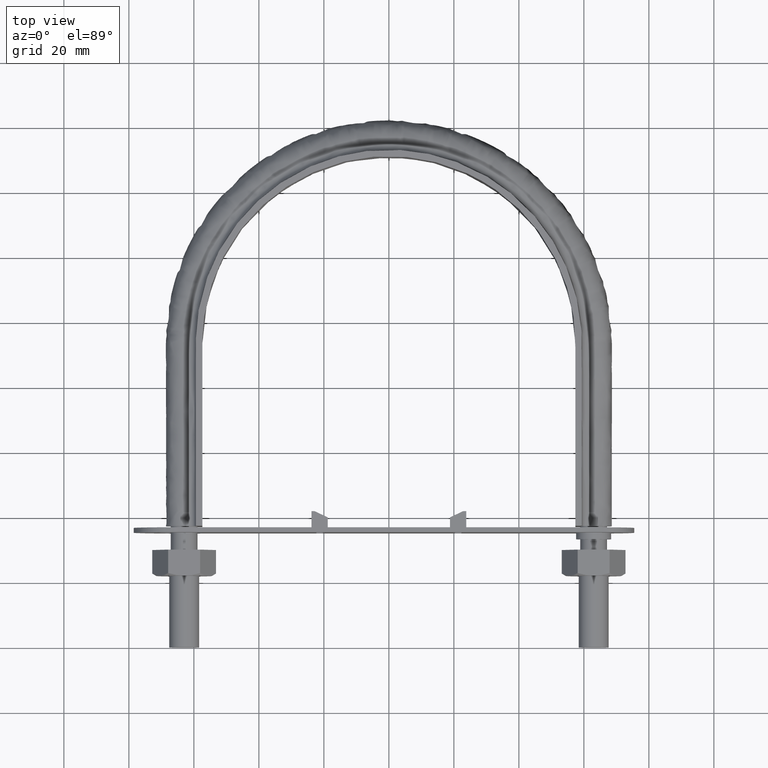
[diagram: clean part render]
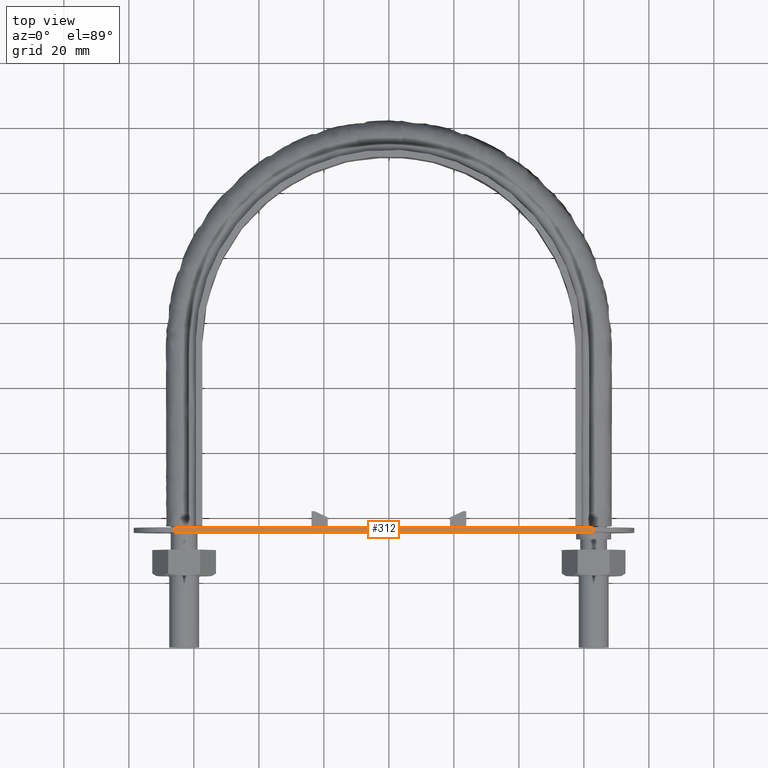
[diagram: same view with one face highlighted and labeled with its STEP entity id]
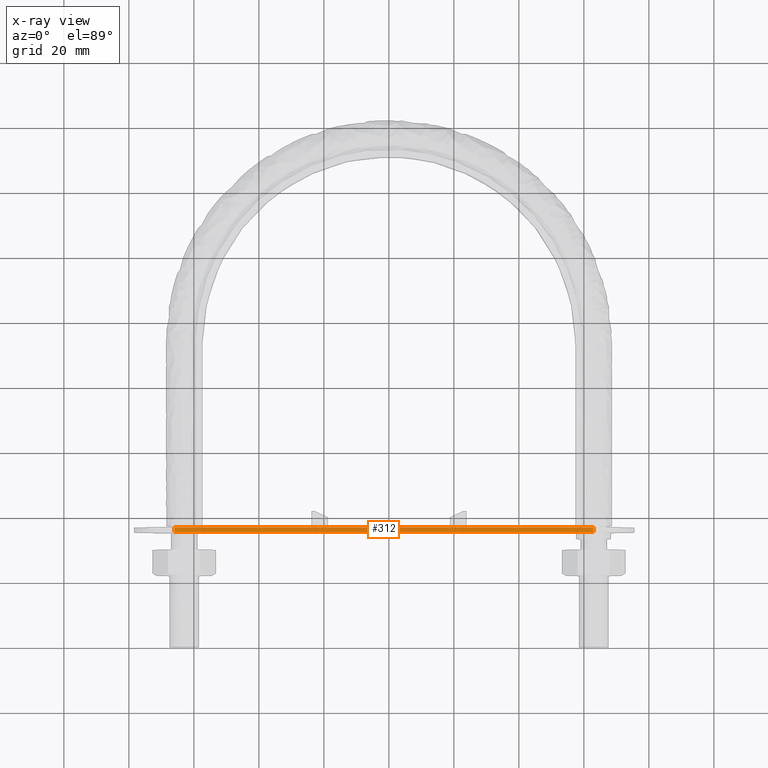
[diagram: x-ray of the same camera — body ghosted, the highlighted face saturated]
A machine part, top view. The second image highlights one B-rep face of the part: STEP entity #312.
The next image is the same camera in x-ray: the body ghosted, the highlighted face saturated — about 0% of this face is hidden behind the body in this view.
In plain terms, the highlighted planar face has unit normal (0, -0, 1).
Its self-contained STEP definition (entity closure, byte-faithful):
#312 = ADVANCED_FACE( '', ( #486 ), #487, .T. );
#486 = FACE_OUTER_BOUND( '', #1393, .T. );
#487 = PLANE( '', #1394 );
#1393 = EDGE_LOOP( '', ( #1866, #1867, #1868, #1869 ) );
#1394 = AXIS2_PLACEMENT_3D( '', #1870, #1871, #1872 );
#1866 = ORIENTED_EDGE( '', *, *, #2410, .F. );
#1867 = ORIENTED_EDGE( '', *, *, #2426, .F. );
#1868 = ORIENTED_EDGE( '', *, *, #2453, .T. );
#1869 = ORIENTED_EDGE( '', *, *, #2463, .T. );
#1870 = CARTESIAN_POINT( '', ( -65.9999999998741, 35.3000000000000, 12.5000000006649 ) );
#1871 = DIRECTION( '', ( 1.00743302589043E-011, -5.34725563500696E-016, 1.00000000000000 ) );
#1872 = DIRECTION( '', ( -1.00000000000000, 2.51087311934302E-018, 1.00743302589043E-011 ) );
#2410 = EDGE_CURVE( '', #2680, #2682, #2683, .T. );
#2426 = EDGE_CURVE( '', #2711, #2680, #2713, .T. );
#2453 = EDGE_CURVE( '', #2711, #2758, #2760, .T. );
#2463 = EDGE_CURVE( '', #2758, #2682, #2774, .T. );
#2680 = VERTEX_POINT( '', #3318 );
#2682 = VERTEX_POINT( '', #3320 );
#2683 = LINE( '', #3321, #3322 );
#2711 = VERTEX_POINT( '', #3358 );
#2713 = LINE( '', #3360, #3361 );
#2758 = VERTEX_POINT( '', #3428 );
#2760 = LINE( '', #3430, #3431 );
#2774 = LINE( '', #3451, #3452 );
#3318 = CARTESIAN_POINT( '', ( -65.9999999998741, 36.8000000000000, 12.5000000006649 ) );
#3320 = CARTESIAN_POINT( '', ( 63.0000000001259, 36.8000000000000, 12.4999999993653 ) );
#3321 = CARTESIAN_POINT( '', ( -65.9999999998741, 36.8000000000000, 12.5000000006649 ) );
#3322 = VECTOR( '', #3942, 1000.00000000000 );
#3358 = CARTESIAN_POINT( '', ( -65.9999999998741, 35.3000000000000, 12.5000000006649 ) );
#3360 = CARTESIAN_POINT( '', ( -65.9999999998741, 35.3000000000000, 12.5000000006649 ) );
#3361 = VECTOR( '', #3972, 1000.00000000000 );
#3428 = CARTESIAN_POINT( '', ( 63.0000000001259, 35.3000000000000, 12.4999999993653 ) );
#3430 = CARTESIAN_POINT( '', ( -65.9999999998741, 35.3000000000000, 12.5000000006649 ) );
#3431 = VECTOR( '', #4007, 1000.00000000000 );
#3451 = CARTESIAN_POINT( '', ( 63.0000000001259, 35.3000000000000, 12.4999999993653 ) );
#3452 = VECTOR( '', #4023, 1000.00000000000 );
#3942 = DIRECTION( '', ( 1.00000000000000, -2.51087311934302E-018, -1.00743302589043E-011 ) );
#3972 = DIRECTION( '', ( 2.51087312473002E-018, 1.00000000000000, 5.34725563500670E-016 ) );
#4007 = DIRECTION( '', ( 1.00000000000000, -2.51087311934302E-018, -1.00743302589043E-011 ) );
#4023 = DIRECTION( '', ( 2.51087312473002E-018, 1.00000000000000, 5.34725563500670E-016 ) );